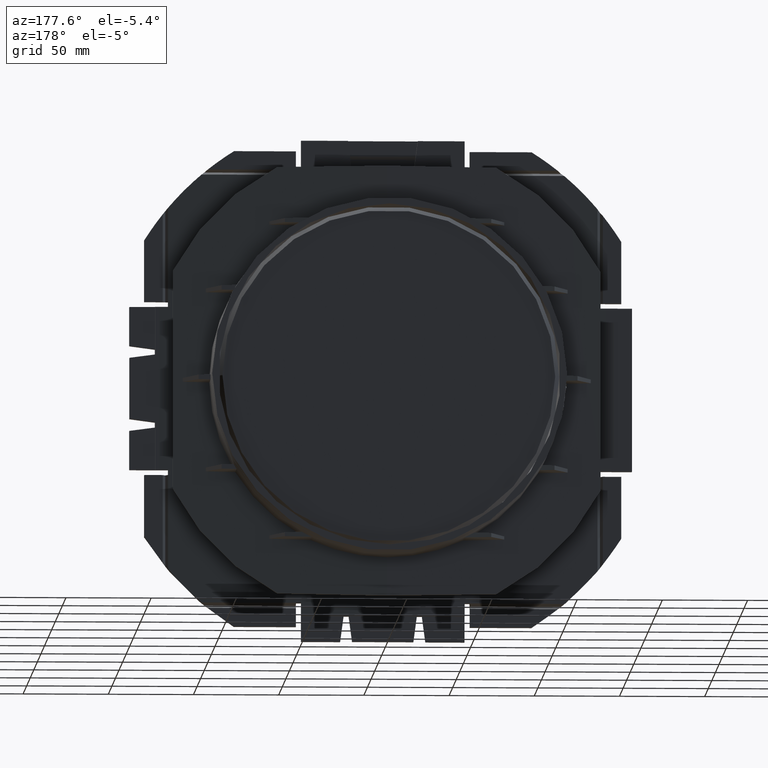
[diagram: clean part render]
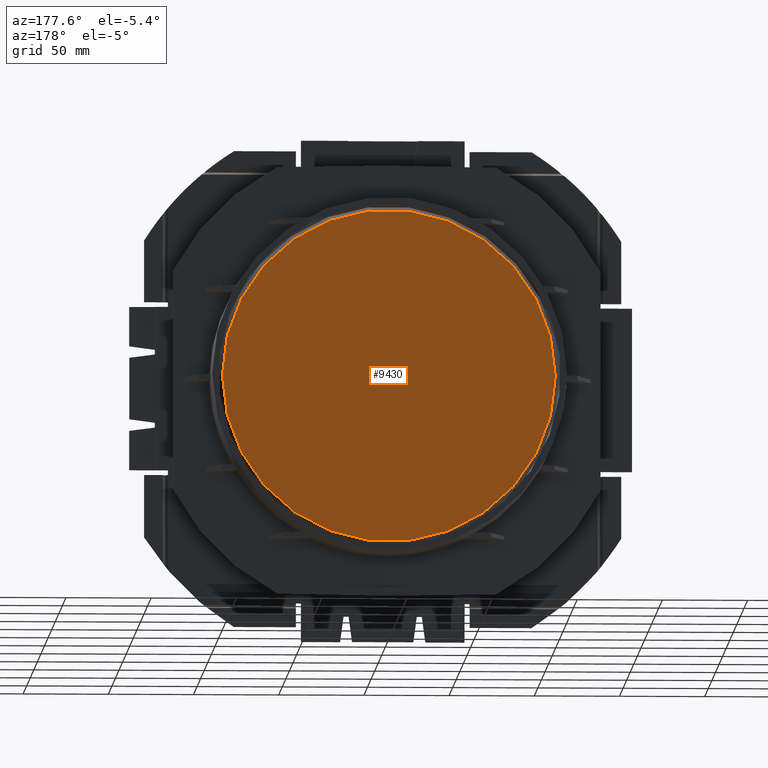
[diagram: same view with one face highlighted and labeled with its STEP entity id]
A machine part, auxiliary view. The second image highlights one B-rep face of the part: STEP entity #9430.
In plain terms, the highlighted planar face has unit normal (0, 1, 0).
Its self-contained STEP definition (entity closure, byte-faithful):
#644=CIRCLE('',#10156,97.65);
#645=CIRCLE('',#10157,97.65);
#1122=FACE_OUTER_BOUND('',#1625,.T.);
#1625=EDGE_LOOP('',(#8145,#8146));
#4206=VERTEX_POINT('',#18312);
#4207=VERTEX_POINT('',#18313);
#5518=EDGE_CURVE('',#4206,#4207,#644,.T.);
#5519=EDGE_CURVE('',#4207,#4206,#645,.T.);
#8145=ORIENTED_EDGE('',*,*,#5518,.T.);
#8146=ORIENTED_EDGE('',*,*,#5519,.T.);
#8475=PLANE('',#10158);
#9430=ADVANCED_FACE('',(#1122),#8475,.T.);
#10156=AXIS2_PLACEMENT_3D('',#18314,#12382,#12383);
#10157=AXIS2_PLACEMENT_3D('',#18315,#12384,#12385);
#10158=AXIS2_PLACEMENT_3D('',#18317,#12387,#12388);
#12382=DIRECTION('center_axis',(0.,1.,0.));
#12383=DIRECTION('ref_axis',(-1.,0.,0.));
#12384=DIRECTION('center_axis',(0.,1.,0.));
#12385=DIRECTION('ref_axis',(-1.,0.,0.));
#12387=DIRECTION('center_axis',(0.,1.,0.));
#12388=DIRECTION('ref_axis',(0.,0.,1.));
#18312=CARTESIAN_POINT('',(-97.65,-0.500000000000004,0.));
#18313=CARTESIAN_POINT('',(97.65,-0.500000000000004,-1.19586759936739E-14));
#18314=CARTESIAN_POINT('Origin',(0.,-0.500000000000004,0.));
#18315=CARTESIAN_POINT('Origin',(0.,-0.500000000000004,0.));
#18317=CARTESIAN_POINT('Origin',(-48.825,-0.500000000000001,0.));